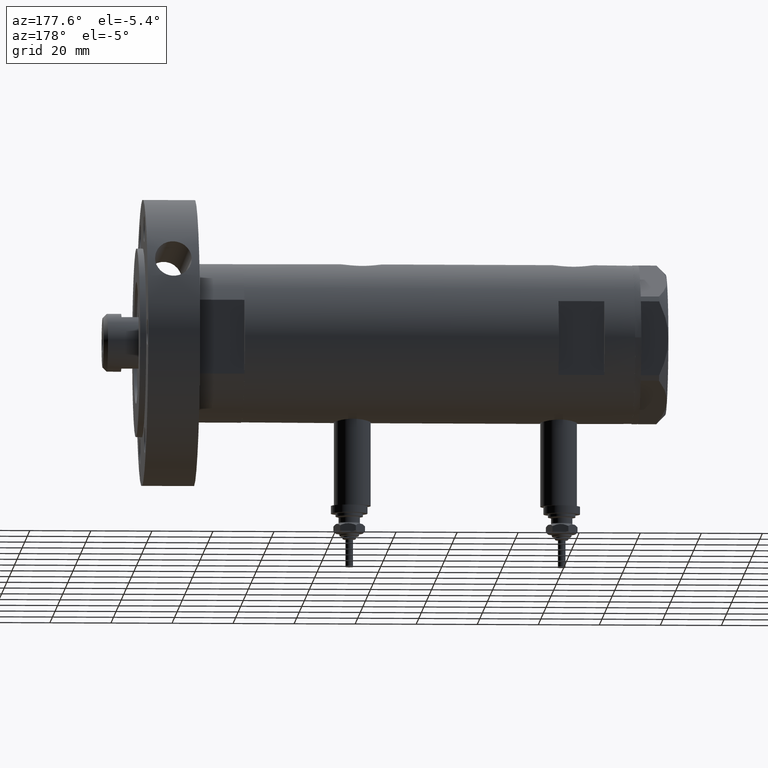
[diagram: clean part render]
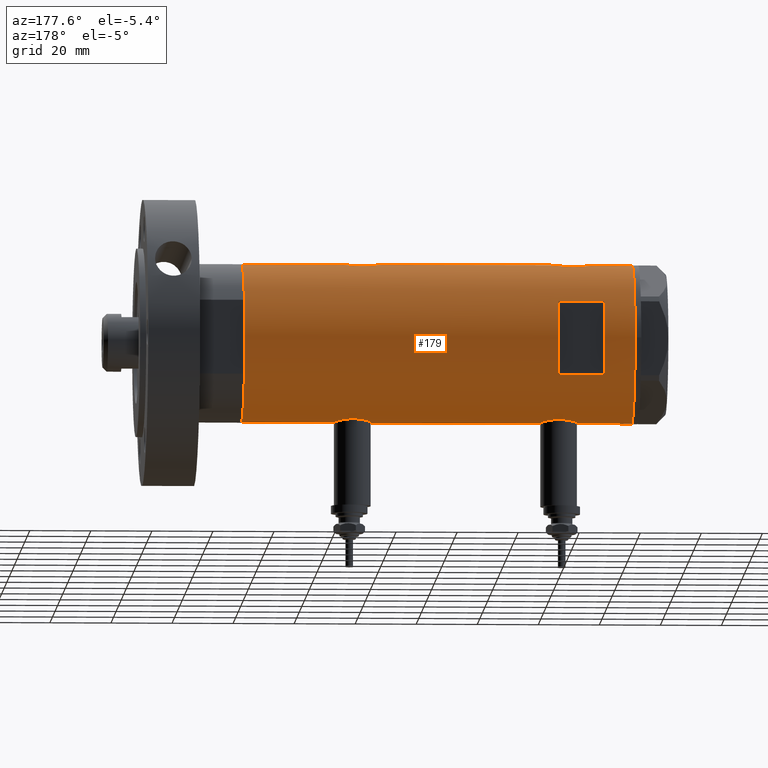
[diagram: same view with one face highlighted and labeled with its STEP entity id]
A machine part, auxiliary view. The second image highlights one B-rep face of the part: STEP entity #179.
In plain terms, the highlighted cylindrical surface (partial cylindrical patch) has radius 26 mm, axis along (-1, -0, 0).
Its self-contained STEP definition (entity closure, byte-faithful):
#2 = CARTESIAN_POINT ( 'NONE',  ( 26.00000000000000355, 2.393127611988522640E-16, 36.95000000000000284 ) ) ;
#28 = CARTESIAN_POINT ( 'NONE',  ( -25.57189498399056049, 4.707763994471527269, -23.51909718944452976 ) ) ;
#50 = EDGE_CURVE ( 'NONE', #2764, #3596, #190, .T. ) ;
#66 = CARTESIAN_POINT ( 'NONE',  ( -25.98789693408478740, 0.8193301824841957570, -33.84948980265347274 ) ) ;
#69 = CARTESIAN_POINT ( 'NONE',  ( 25.08669247833292104, 6.831361936037323446, -21.64462260596211252 ) ) ;
#114 = CARTESIAN_POINT ( 'NONE',  ( 25.30960479024497900, 5.958491152160520166, -29.33139677679963953 ) ) ;
#146 = CARTESIAN_POINT ( 'NONE',  ( -26.00000000000000355, 9.891741702313250758E-16, -21.40000000000000568 ) ) ;
#177 = CARTESIAN_POINT ( 'NONE',  ( -26.00000000000000355, 3.184081677783118585E-15, -63.95000000000000995 ) ) ;
#179 = ADVANCED_FACE ( 'NONE', ( #1463, #7041 ), #6436, .T. ) ;
#189 = CARTESIAN_POINT ( 'NONE',  ( 25.98569222077105323, 0.9879514382926379845, -32.20081846687561722 ) ) ;
#190 = LINE ( 'NONE', #6922, #2503 ) ;
#231 = CARTESIAN_POINT ( 'NONE',  ( 0.000000000000000000, 0.000000000000000000, 63.95000000000000995 ) ) ;
#275 = CARTESIAN_POINT ( 'NONE',  ( -25.27696731428695998, 6.089059008147561514, 41.37416306959482881 ) ) ;
#356 = EDGE_CURVE ( 'NONE', #3596, #1284, #1372, .T. ) ;
#357 = CARTESIAN_POINT ( 'NONE',  ( -25.72087293759780380, 3.814831448865741770, 34.98261705172143365 ) ) ;
#370 = CARTESIAN_POINT ( 'NONE',  ( -25.38675822915648084, 5.615881323213569587, -24.87693218337989975 ) ) ;
#382 = CARTESIAN_POINT ( 'NONE',  ( -12.12435565298214080, 23.00000000000000355, -63.95000000000000995 ) ) ;
#393 = CARTESIAN_POINT ( 'NONE',  ( -25.98057228346870673, 1.024901789261881913, 33.78119414145175625 ) ) ;
#410 = EDGE_CURVE ( 'NONE', #1539, #4079, #4638, .T. ) ;
#413 = CARTESIAN_POINT ( 'NONE',  ( 25.00820649268565887, 7.115348876445586335, 46.87184000475451739 ) ) ;
#439 = DIRECTION ( 'NONE',  ( 1.000000000000000000, 0.000000000000000000, 0.000000000000000000 ) ) ;
#445 = CARTESIAN_POINT ( 'NONE',  ( 24.97016856345953073, 7.245430721349219283, 42.49696959080609560 ) ) ;
#491 = CARTESIAN_POINT ( 'NONE',  ( 25.03487248886524696, 7.018875226450792759, 41.79576782607938412 ) ) ;
#514 = ORIENTED_EDGE ( 'NONE', *, *, #2210, .F. ) ;
#583 = CARTESIAN_POINT ( 'NONE',  ( -25.96182217530153480, 1.422664245316465736, -21.56064726907610307 ) ) ;
#586 = VECTOR ( 'NONE', #4556, 1000.000000000000000 ) ;
#622 = CARTESIAN_POINT ( 'NONE',  ( -25.95015815577422558, 1.621168830448742382, -21.61041429560181371 ) ) ;
#658 = B_SPLINE_CURVE_WITH_KNOTS ( 'NONE', 3,
 ( #4542, #7008, #890, #3348, #5818, #7735, #3470, #6575, #927, #1038, #2204, #4660, #4590, #3502, #4711, #1522, #5970, #491, #2951, #445, #7175, #5244, #2830, #963, #5939, #2906, #413, #4068, #3989, #5367, #6489, #2868, #5406, #7127, #5902, #1069, #6544, #1012, #2121, #7061, #1673, #1595, #5322, #7774, #2239, #1642 ),
 .UNSPECIFIED., .F., .F.,
 ( 4, 2, 2, 2, 2, 2, 2, 2, 2, 2, 2, 2, 2, 2, 2, 2, 2, 2, 2, 2, 2, 2, 4 ),
 ( 2.323866739619147150E-19, 0.001473395154583068958, 0.002210092731874605497, 0.002946790309166141819, 0.004420185463749206657, 0.005156883041040739510, 0.005893580618332274097, 0.007366975772915325057, 0.008840370927498376885, 0.009577068504789901932, 0.01031376608208142698, 0.01178716123666447707, 0.01326055639124752716, 0.01473395154583057726, 0.01547064912312210404, 0.01620734670041363082, 0.01694404427770515587, 0.01768074185499668438, 0.01915413700957973447, 0.02062753216416278457, 0.02210092731874583813, 0.02283762489603735971, 0.02357432247332888128 ),
 .UNSPECIFIED. ) ;
#662 = CARTESIAN_POINT ( 'NONE',  ( -25.23766275406408965, 6.249830297096024445, -27.23808095444882582 ) ) ;
#664 = CARTESIAN_POINT ( 'NONE',  ( 24.89484527721569052, 7.499778575171893280, -25.24550805482937932 ) ) ;
#699 = CARTESIAN_POINT ( 'NONE',  ( -25.99999999999999289, 0.2043916521039002843, -33.90000000000000568 ) ) ;
#701 = CARTESIAN_POINT ( 'NONE',  ( 25.86510134953875450, 2.654921787384012521, -31.76867061694904493 ) ) ;
#730 = VERTEX_POINT ( 'NONE', #6210 ) ;
#747 = CARTESIAN_POINT ( 'NONE',  ( -25.59680708126580129, 4.563450671387943025, -31.92543949979970108 ) ) ;
#750 = CARTESIAN_POINT ( 'NONE',  ( 24.96662810169869218, 7.257932614256870529, -22.79702690473265392 ) ) ;
#784 = CARTESIAN_POINT ( 'NONE',  ( -25.99009688862344092, 0.8219492608955323298, 46.15915939226576370 ) ) ;
#785 = DIRECTION ( 'NONE',  ( 1.000000000000000000, -5.329070518200751394E-15, 0.000000000000000000 ) ) ;
#818 = VECTOR ( 'NONE', #3305, 1000.000000000000000 ) ;
#823 = CARTESIAN_POINT ( 'NONE',  ( 25.92799636947105668, 1.948138538329396319, -31.99677687788214797 ) ) ;
#876 = CARTESIAN_POINT ( 'NONE',  ( 0.000000000000000000, 0.000000000000000000, -63.95000000000000995 ) ) ;
#890 = CARTESIAN_POINT ( 'NONE',  ( 25.98569222077104257, 0.9879514382926377625, 36.99918153312438562 ) ) ;
#907 = CARTESIAN_POINT ( 'NONE',  ( -25.98789693408479451, 0.8193301824841956460, 33.75051019734654290 ) ) ;
#918 = ORIENTED_EDGE ( 'NONE', *, *, #3743, .F. ) ;
#921 = CARTESIAN_POINT ( 'NONE',  ( -26.00000000000000355, 3.184081677783118585E-15, -63.95000000000000995 ) ) ;
#927 = CARTESIAN_POINT ( 'NONE',  ( 25.72923282622329211, 3.765147152416744802, 37.94514424215291371 ) ) ;
#963 = CARTESIAN_POINT ( 'NONE',  ( 24.89471231507667071, 7.500219916954787180, 44.93878226883029470 ) ) ;
#987 = CARTESIAN_POINT ( 'NONE',  ( -25.52275868012767646, 4.960454986366448438, 36.14238370593368188 ) ) ;
#1011 = AXIS2_PLACEMENT_3D ( 'NONE', #1491, #7745, #7667 ) ;
#1012 = CARTESIAN_POINT ( 'NONE',  ( 25.72868876879096689, 3.768709330223694920, 50.95267486870066165 ) ) ;
#1038 = CARTESIAN_POINT ( 'NONE',  ( 25.63006864069250668, 4.375159448492148329, 38.35345588241117554 ) ) ;
#1065 = EDGE_CURVE ( 'NONE', #730, #7364, #3428, .T. ) ;
#1069 = CARTESIAN_POINT ( 'NONE',  ( 25.52590365620542912, 4.955152228772151446, 50.10123727588237585 ) ) ;
#1214 = CARTESIAN_POINT ( 'NONE',  ( -25.57167265924275412, 4.701795585128873967, -31.77276288310035213 ) ) ;
#1284 = VERTEX_POINT ( 'NONE', #7355 ) ;
#1297 = CARTESIAN_POINT ( 'NONE',  ( -25.42927140605240766, 5.422776733968210472, -24.51556003986717513 ) ) ;
#1299 = CARTESIAN_POINT ( 'NONE',  ( 25.89067367629245808, 2.424883365422559223, -17.63594795494831402 ) ) ;
#1333 = ORIENTED_EDGE ( 'NONE', *, *, #1065, .F. ) ;
#1338 = CARTESIAN_POINT ( 'NONE',  ( -25.49884629689154636, 5.081547904122037274, -31.29439805696091526 ) ) ;
#1340 = CARTESIAN_POINT ( 'NONE',  ( 25.01140519645288407, 7.101774040639619479, -27.17392235700823733 ) ) ;
#1341 = AXIS2_PLACEMENT_3D ( 'NONE', #4138, #2859, #439 ) ;
#1372 = B_SPLINE_CURVE_WITH_KNOTS ( 'NONE', 3,
 ( #4931, #6343, #189, #6956, #823, #1860, #701, #5638, #4326, #5675, #5020, #3165, #3722, #1974, #114, #6920, #6270, #6872, #1340, #2557, #1933, #1387, #664, #4401, #3119, #750, #3210, #69, #7438, #2636, #4452, #3842, #6309, #5106, #1419, #4983, #1899, #4367, #6838, #1299, #3756, #6217, #5870, #3327, #5916, #3397 ),
 .UNSPECIFIED., .F., .F.,
 ( 4, 2, 2, 2, 2, 2, 2, 2, 2, 2, 2, 2, 2, 2, 2, 2, 2, 2, 2, 2, 2, 2, 4 ),
 ( 6.413325872240687501E-19, 0.001473395154583055080, 0.002210092731874579910, 0.002946790309166104523, 0.004420185463749155483, 0.005156883041040686601, 0.005893580618332217719, 0.007366975772915269546, 0.008840370927498323109, 0.009577068504789844686, 0.01031376608208136626, 0.01178716123666441982, 0.01326055639124747165, 0.01473395154583052175, 0.01547064912312205720, 0.01620734670041358919, 0.01694404427770512117, 0.01768074185499665316, 0.01915413700957970325, 0.02062753216416275681, 0.02210092731874581037, 0.02283762489603733542, 0.02357432247332886047 ),
 .UNSPECIFIED. ) ;
#1387 = CARTESIAN_POINT ( 'NONE',  ( 24.90951684770588415, 7.451587374037533351, -25.73395604521198621 ) ) ;
#1419 = CARTESIAN_POINT ( 'NONE',  ( 25.41763780493360514, 5.474943943663459933, -19.61823686211066686 ) ) ;
#1463 = FACE_BOUND ( 'NONE', #4507, .T. ) ;
#1491 = CARTESIAN_POINT ( 'NONE',  ( 0.000000000000000000, 0.000000000000000000, 38.94999999999999574 ) ) ;
#1502 = CARTESIAN_POINT ( 'NONE',  ( -25.95015815577423268, 1.621168830448741938, 45.98958570439819482 ) ) ;
#1522 = CARTESIAN_POINT ( 'NONE',  ( 25.17424625143662453, 6.506691718592097828, 40.68758373966274178 ) ) ;
#1536 = CARTESIAN_POINT ( 'NONE',  ( -25.72105193281917224, 3.813738527046911297, 44.91833691099433423 ) ) ;
#1539 = VERTEX_POINT ( 'NONE', #3338 ) ;
#1559 = EDGE_CURVE ( 'NONE', #2764, #5702, #6375, .T. ) ;
#1595 = CARTESIAN_POINT ( 'NONE',  ( 25.97197502027376004, 1.230965554787593952, 51.85240824498373513 ) ) ;
#1642 = CARTESIAN_POINT ( 'NONE',  ( 26.00000000000000355, -3.975025925197986111E-20, 51.95000000000000284 ) ) ;
#1673 = CARTESIAN_POINT ( 'NONE',  ( 25.93077501166306575, 1.957027822413552220, 51.70697858562407845 ) ) ;
#1755 = EDGE_CURVE ( 'NONE', #5943, #7454, #7217, .T. ) ;
#1770 = EDGE_CURVE ( 'NONE', #7364, #3827, #5224, .T. ) ;
#1814 = CARTESIAN_POINT ( 'NONE',  ( -26.00000000000000355, 3.184081677783118585E-15, 63.95000000000000995 ) ) ;
#1856 = AXIS2_PLACEMENT_3D ( 'NONE', #7436, #6307, #785 ) ;
#1860 = CARTESIAN_POINT ( 'NONE',  ( 25.88814720404043968, 2.420758939209242566, -31.85288286828453508 ) ) ;
#1897 = CARTESIAN_POINT ( 'NONE',  ( -25.31518616157687873, 5.930210831981640673, -29.66587117207026836 ) ) ;
#1899 = CARTESIAN_POINT ( 'NONE',  ( 25.59685363299822569, 4.579266302355748053, -18.79027931897347514 ) ) ;
#1930 = CARTESIAN_POINT ( 'NONE',  ( -25.28673619335055633, 6.048783215285168602, -29.27550990348179027 ) ) ;
#1933 = CARTESIAN_POINT ( 'NONE',  ( 24.95233689475078265, 7.306396477445174398, -26.46103813146666184 ) ) ;
#1962 = ORIENTED_EDGE ( 'NONE', *, *, #1770, .F. ) ;
#1974 = CARTESIAN_POINT ( 'NONE',  ( 25.38132706741445332, 5.649034551923782566, -29.70731952814044874 ) ) ;
#1977 = AXIS2_PLACEMENT_3D ( 'NONE', #876, #3250, #3372 ) ;
#2085 = ORIENTED_EDGE ( 'NONE', *, *, #410, .F. ) ;
#2096 = CARTESIAN_POINT ( 'NONE',  ( -25.96182217530152769, 1.422664245316465070, 46.03935273092390190 ) ) ;
#2121 = CARTESIAN_POINT ( 'NONE',  ( 25.78997056644825392, 3.329333406239039839, 51.18834808433847883 ) ) ;
#2141 = CARTESIAN_POINT ( 'NONE',  ( -25.28915991580759837, 6.038390257328908106, 41.57552651146907863 ) ) ;
#2200 = LINE ( 'NONE', #2738, #7527 ) ;
#2204 = CARTESIAN_POINT ( 'NONE',  ( 25.59528664075984850, 4.573671112500303337, 38.50090496483275615 ) ) ;
#2210 = EDGE_CURVE ( 'NONE', #4079, #5073, #3672, .T. ) ;
#2217 = CARTESIAN_POINT ( 'NONE',  ( -25.99999999999999289, 0.2043916521039015888, 33.70000000000000284 ) ) ;
#2239 = CARTESIAN_POINT ( 'NONE',  ( 25.99999999999999645, 0.2455784580650500204, 51.94999999999998863 ) ) ;
#2302 = CARTESIAN_POINT ( 'NONE',  ( 12.12435565298214080, 23.00000000000000355, 53.94999999999999574 ) ) ;
#2428 = CARTESIAN_POINT ( 'NONE',  ( -25.23757896588370642, 6.250168635417626462, -28.05675308410501501 ) ) ;
#2462 = CARTESIAN_POINT ( 'NONE',  ( -25.85406084573622110, 2.777003695811654183, -22.03587158673905222 ) ) ;
#2503 = VECTOR ( 'NONE', #2687, 1000.000000000000000 ) ;
#2508 = CARTESIAN_POINT ( 'NONE',  ( -25.99759026373432391, 0.4091325989570628874, -33.88999890044899388 ) ) ;
#2555 = CARTESIAN_POINT ( 'NONE',  ( -25.67176285215958842, 4.128807479817787396, -32.35991598451124673 ) ) ;
#2557 = CARTESIAN_POINT ( 'NONE',  ( 24.97016856345952007, 7.245430721349214842, -26.70303040919391435 ) ) ;
#2636 = CARTESIAN_POINT ( 'NONE',  ( 25.17636585680006078, 6.493453152855879651, -20.98900750337198318 ) ) ;
#2675 = DIRECTION ( 'NONE',  ( 0.000000000000000000, 0.000000000000000000, 1.000000000000000000 ) ) ;
#2687 = DIRECTION ( 'NONE',  ( 0.000000000000000000, 0.000000000000000000, 1.000000000000000000 ) ) ;
#2723 = CARTESIAN_POINT ( 'NONE',  ( -25.43062364804612230, 5.412314182902753679, 36.81772351419071043 ) ) ;
#2738 = CARTESIAN_POINT ( 'NONE',  ( 26.00000000000000355, 0.000000000000000000, -63.95000000000000995 ) ) ;
#2757 = CARTESIAN_POINT ( 'NONE',  ( -25.67095236150574067, 4.133649689219791590, 44.65535228274259083 ) ) ;
#2764 = VERTEX_POINT ( 'NONE', #6659 ) ;
#2793 = B_SPLINE_CURVE_WITH_KNOTS ( 'NONE', 3,
 ( #5143, #6306, #784, #2096, #1502, #7751, #2808, #3449, #6514, #1536, #2757, #7796, #5260, #5177, #4566, #7675, #5337, #2141, #275, #4090, #3329, #5917, #5221, #5799, #5834, #6430, #7108, #2723, #4678, #2883, #987, #7628, #4608, #3365, #357, #2843, #7713, #6468, #3919, #393, #907, #6557, #2217, #5298 ),
 .UNSPECIFIED., .F., .F.,
 ( 4, 2, 2, 2, 2, 2, 2, 2, 2, 2, 2, 2, 2, 2, 2, 2, 2, 2, 2, 2, 2, 4 ),
 ( 2.732276935479321607E-19, 0.001225774033668403139, 0.001838661050502602649, 0.002451548067336802375, 0.003677322101005202262, 0.004903096134673601281, 0.006128870168342001601, 0.007354644202010401054, 0.007967531218844600346, 0.008580418235678800506, 0.009806192269347199092, 0.01103196630301559768, 0.01225774033668399626, 0.01287062735351819469, 0.01348351437035239485, 0.01409640138718659501, 0.01470928840402079343, 0.01593506243768920069, 0.01716083647135761142, 0.01838661050502602215, 0.01899949752186022578, 0.01961238453869442941 ),
 .UNSPECIFIED. ) ;
#2808 = CARTESIAN_POINT ( 'NONE',  ( -25.90661719257679252, 2.209805098346976138, 45.79988745781523107 ) ) ;
#2830 = CARTESIAN_POINT ( 'NONE',  ( 24.89484527721569762, 7.499778575171895945, 43.95449194517064484 ) ) ;
#2843 = CARTESIAN_POINT ( 'NONE',  ( -25.81206132723605506, 3.139065735901517495, 34.53021230639124894 ) ) ;
#2859 = DIRECTION ( 'NONE',  ( 0.000000000000000000, 0.000000000000000000, 1.000000000000000000 ) ) ;
#2868 = CARTESIAN_POINT ( 'NONE',  ( 25.27545867390325185, 6.096774941222090405, 48.82477406957965371 ) ) ;
#2883 = CARTESIAN_POINT ( 'NONE',  ( -25.49884629689154281, 5.081547904122033721, 36.30560194303910748 ) ) ;
#2906 = CARTESIAN_POINT ( 'NONE',  ( 24.96662810169870284, 7.257932614256869641, 46.40297309526737024 ) ) ;
#2951 = CARTESIAN_POINT ( 'NONE',  ( 25.01140519645289828, 7.101774040639625696, 42.02607764299177973 ) ) ;
#2991 = CARTESIAN_POINT ( 'NONE',  ( -26.00000000000000355, 3.184081677783118585E-15, -63.95000000000000995 ) ) ;
#3000 = EDGE_CURVE ( 'NONE', #6025, #1539, #658, .T. ) ;
#3050 = CARTESIAN_POINT ( 'NONE',  ( 26.00000000000000355, 6.604469597105595072E-16, -32.25000000000000000 ) ) ;
#3086 = CARTESIAN_POINT ( 'NONE',  ( -25.90661719257678541, 2.209805098346974805, -21.80011254218479877 ) ) ;
#3117 = CARTESIAN_POINT ( 'NONE',  ( -25.43062364804612230, 5.412314182902756343, -30.78227648580932652 ) ) ;
#3119 = CARTESIAN_POINT ( 'NONE',  ( 24.90976107960111818, 7.450765568638821890, -23.76117130648535891 ) ) ;
#3160 = CARTESIAN_POINT ( 'NONE',  ( -25.52275868012767646, 4.960454986366448438, -31.45761629406634086 ) ) ;
#3165 = CARTESIAN_POINT ( 'NONE',  ( 25.52465069878074999, 4.952713637311402906, -30.38744860815256388 ) ) ;
#3208 = CARTESIAN_POINT ( 'NONE',  ( -26.00000000000000355, 3.184077527325983904E-15, -33.90000000000001279 ) ) ;
#3210 = CARTESIAN_POINT ( 'NONE',  ( 25.00820649268565532, 7.115348876445588111, -22.32815999524549611 ) ) ;
#3250 = DIRECTION ( 'NONE',  ( 0.000000000000000000, 0.000000000000000000, 1.000000000000000000 ) ) ;
#3277 = LINE ( 'NONE', #177, #7923 ) ;
#3281 = DIRECTION ( 'NONE',  ( 0.000000000000000000, 0.000000000000000000, 1.000000000000000000 ) ) ;
#3304 = AXIS2_PLACEMENT_3D ( 'NONE', #231, #6424, #7622 ) ;
#3305 = DIRECTION ( 'NONE',  ( 0.000000000000000000, 0.000000000000000000, 1.000000000000000000 ) ) ;
#3327 = CARTESIAN_POINT ( 'NONE',  ( 25.99652140603931727, 0.4914164889130551717, -17.26203179519542630 ) ) ;
#3329 = CARTESIAN_POINT ( 'NONE',  ( -25.23766275406409321, 6.249830297096026221, 40.36191904555118271 ) ) ;
#3338 = CARTESIAN_POINT ( 'NONE',  ( 26.00000000000000355, -3.975025925197986111E-20, 51.95000000000000284 ) ) ;
#3348 = CARTESIAN_POINT ( 'NONE',  ( 25.94484652078419273, 1.709678645892021009, 37.14334653240825901 ) ) ;
#3365 = CARTESIAN_POINT ( 'NONE',  ( -25.67176285215957421, 4.128807479817785620, 35.24008401548878311 ) ) ;
#3372 = DIRECTION ( 'NONE',  ( 1.000000000000000000, 0.000000000000000000, 0.000000000000000000 ) ) ;
#3394 = VECTOR ( 'NONE', #7879, 1000.000000000000000 ) ;
#3397 = CARTESIAN_POINT ( 'NONE',  ( 26.00000000000000355, -3.975025925197986111E-20, -17.25000000000000000 ) ) ;
#3406 = VECTOR ( 'NONE', #7653, 1000.000000000000000 ) ;
#3421 = CARTESIAN_POINT ( 'NONE',  ( -26.00000000000000355, 9.891741702313250758E-16, -21.40000000000000568 ) ) ;
#3428 = LINE ( 'NONE', #382, #3406 ) ;
#3449 = CARTESIAN_POINT ( 'NONE',  ( -25.85406084573620689, 2.777003695811653738, 45.56412841326093854 ) ) ;
#3470 = CARTESIAN_POINT ( 'NONE',  ( 25.86510134953875450, 2.654921787384014298, 37.43132938305095792 ) ) ;
#3502 = CARTESIAN_POINT ( 'NONE',  ( 25.38132706741445688, 5.649034551923787895, 39.49268047185955766 ) ) ;
#3574 = LINE ( 'NONE', #4704, #3394 ) ;
#3596 = VERTEX_POINT ( 'NONE', #3050 ) ;
#3598 = CARTESIAN_POINT ( 'NONE',  ( -26.00000000000000355, -2.813058302341337106E-16, 46.20000000000000284 ) ) ;
#3672 = CIRCLE ( 'NONE', #3304, 26.00000000000000355 ) ;
#3706 = ORIENTED_EDGE ( 'NONE', *, *, #4897, .F. ) ;
#3719 = CARTESIAN_POINT ( 'NONE',  ( -25.99009688862344092, 0.8219492608955333290, -21.44084060773424838 ) ) ;
#3722 = CARTESIAN_POINT ( 'NONE',  ( 25.48882460966380492, 5.133289275481214275, -30.22343523597908188 ) ) ;
#3743 = EDGE_CURVE ( 'NONE', #6412, #7869, #2793, .T. ) ;
#3754 = CARTESIAN_POINT ( 'NONE',  ( -25.92432690655986960, 2.018143994254072648, -33.57929422822715537 ) ) ;
#3756 = CARTESIAN_POINT ( 'NONE',  ( 25.93077501166307641, 1.957027822413550888, -17.49302141437590663 ) ) ;
#3796 = CARTESIAN_POINT ( 'NONE',  ( -25.24784248027029676, 6.209126813737964490, -28.47268161688059962 ) ) ;
#3827 = VERTEX_POINT ( 'NONE', #2302 ) ;
#3842 = CARTESIAN_POINT ( 'NONE',  ( 25.27545867390324830, 6.096774941222096622, -20.37522593042036334 ) ) ;
#3919 = CARTESIAN_POINT ( 'NONE',  ( -25.95208098418916620, 1.628413954368980399, 33.90193207829285882 ) ) ;
#3965 = CIRCLE ( 'NONE', #1011, 26.00000000000000355 ) ;
#3989 = CARTESIAN_POINT ( 'NONE',  ( 25.11550258961939974, 6.725017566862028673, 47.77928477806020169 ) ) ;
#4034 = CARTESIAN_POINT ( 'NONE',  ( 26.00000000000000355, 0.000000000000000000, -63.95000000000000995 ) ) ;
#4068 = CARTESIAN_POINT ( 'NONE',  ( 25.08669247833291394, 6.831361936037319893, 47.55537739403791164 ) ) ;
#4079 = VERTEX_POINT ( 'NONE', #5912 ) ;
#4090 = CARTESIAN_POINT ( 'NONE',  ( -25.24766879991037172, 6.209837761082653174, 40.76849569029695886 ) ) ;
#4138 = CARTESIAN_POINT ( 'NONE',  ( 0.000000000000000000, 0.000000000000000000, -63.95000000000000995 ) ) ;
#4143 = EDGE_CURVE ( 'NONE', #6712, #730, #3965, .T. ) ;
#4205 = ORIENTED_EDGE ( 'NONE', *, *, #7908, .T. ) ;
#4244 = CARTESIAN_POINT ( 'NONE',  ( -25.95208098418916975, 1.628413954368980843, -33.69806792170715681 ) ) ;
#4276 = CARTESIAN_POINT ( 'NONE',  ( -25.27696731428695642, 6.089059008147562402, -26.22583693040519037 ) ) ;
#4326 = CARTESIAN_POINT ( 'NONE',  ( 25.72923282622328855, 3.765147152416742138, -31.25485575784708203 ) ) ;
#4365 = CARTESIAN_POINT ( 'NONE',  ( -25.36894112891957676, 5.694149517195238097, -30.23482505198309056 ) ) ;
#4367 = CARTESIAN_POINT ( 'NONE',  ( 25.72868876879096689, 3.768709330223691811, -18.24732513129934830 ) ) ;
#4399 = CARTESIAN_POINT ( 'NONE',  ( -25.33346170681503651, 5.849967696906715808, -25.44052947900492967 ) ) ;
#4401 = CARTESIAN_POINT ( 'NONE',  ( 24.89471231507667426, 7.500219916954788957, -24.26121773116972236 ) ) ;
#4452 = CARTESIAN_POINT ( 'NONE',  ( 25.20855488770173380, 6.367749707222643885, -20.77997776959044174 ) ) ;
#4507 = EDGE_LOOP ( 'NONE', ( #7230, #3706, #1962, #1333 ) ) ;
#4542 = CARTESIAN_POINT ( 'NONE',  ( 26.00000000000000355, 2.393127611988522640E-16, 36.95000000000000284 ) ) ;
#4556 = DIRECTION ( 'NONE',  ( 0.000000000000000000, 0.000000000000000000, 1.000000000000000000 ) ) ;
#4566 = CARTESIAN_POINT ( 'NONE',  ( -25.38675822915648084, 5.615881323213569587, 42.72306781662011588 ) ) ;
#4585 = LINE ( 'NONE', #921, #818 ) ;
#4590 = CARTESIAN_POINT ( 'NONE',  ( 25.48882460966379782, 5.133289275481216940, 38.97656476402091386 ) ) ;
#4608 = CARTESIAN_POINT ( 'NONE',  ( -25.59680708126580129, 4.563450671387941249, 35.67456050020032166 ) ) ;
#4638 = LINE ( 'NONE', #4034, #5358 ) ;
#4639 = ORIENTED_EDGE ( 'NONE', *, *, #3000, .F. ) ;
#4660 = CARTESIAN_POINT ( 'NONE',  ( 25.52465069878074644, 4.952713637311401129, 38.81255139184744962 ) ) ;
#4665 = EDGE_CURVE ( 'NONE', #6412, #5073, #4585, .T. ) ;
#4678 = CARTESIAN_POINT ( 'NONE',  ( -25.45277932469921822, 5.307477387851097461, 36.64327199834690418 ) ) ;
#4704 = CARTESIAN_POINT ( 'NONE',  ( 12.12435565298214080, 23.00000000000000355, -63.95000000000000995 ) ) ;
#4711 = CARTESIAN_POINT ( 'NONE',  ( 25.30960479024496834, 5.958491152160524607, 39.86860322320038819 ) ) ;
#4744 = ORIENTED_EDGE ( 'NONE', *, *, #5873, .F. ) ;
#4891 = CARTESIAN_POINT ( 'NONE',  ( -25.38875076695535782, 5.605452563035137281, -30.42185900824106426 ) ) ;
#4897 = EDGE_CURVE ( 'NONE', #3827, #6712, #3574, .T. ) ;
#4928 = CARTESIAN_POINT ( 'NONE',  ( -25.72105193281916513, 3.813738527046907745, -22.68166308900567785 ) ) ;
#4931 = CARTESIAN_POINT ( 'NONE',  ( 26.00000000000000355, 6.604469597105595072E-16, -32.25000000000000000 ) ) ;
#4983 = CARTESIAN_POINT ( 'NONE',  ( 25.52590365620542556, 4.955152228772148781, -19.09876272411762343 ) ) ;
#5010 = CARTESIAN_POINT ( 'NONE',  ( -26.00000000000000355, 3.184077527313362130E-15, 33.70000000000000995 ) ) ;
#5018 = CARTESIAN_POINT ( 'NONE',  ( -25.81206132723605151, 3.139065735901513943, -33.06978769360876669 ) ) ;
#5020 = CARTESIAN_POINT ( 'NONE',  ( 25.59528664075984139, 4.573671112500301561, -30.69909503516727156 ) ) ;
#5055 = CARTESIAN_POINT ( 'NONE',  ( -25.31738333113901263, 5.918941409682878962, -25.63242077527679186 ) ) ;
#5073 = VERTEX_POINT ( 'NONE', #1814 ) ;
#5106 = CARTESIAN_POINT ( 'NONE',  ( 25.38117076385348270, 5.641057083563593366, -19.80143420258153242 ) ) ;
#5143 = CARTESIAN_POINT ( 'NONE',  ( -26.00000000000000355, -2.813058302341337106E-16, 46.20000000000000284 ) ) ;
#5173 = CARTESIAN_POINT ( 'NONE',  ( -26.00000000000000355, 3.184081677783118585E-15, -63.95000000000000995 ) ) ;
#5177 = CARTESIAN_POINT ( 'NONE',  ( -25.42927140605241121, 5.422776733968213136, 43.08443996013281918 ) ) ;
#5221 = CARTESIAN_POINT ( 'NONE',  ( -25.24784248027030031, 6.209126813737962713, 39.12731838311943022 ) ) ;
#5224 = CIRCLE ( 'NONE', #1856, 26.00000000000000355 ) ;
#5244 = CARTESIAN_POINT ( 'NONE',  ( 24.90951684770588059, 7.451587374037537792, 43.46604395478804861 ) ) ;
#5260 = CARTESIAN_POINT ( 'NONE',  ( -25.52242378584899285, 4.965907353613394193, 43.76719602921738783 ) ) ;
#5298 = CARTESIAN_POINT ( 'NONE',  ( -26.00000000000000355, 3.184077527313362130E-15, 33.70000000000000995 ) ) ;
#5318 = DIRECTION ( 'NONE',  ( 0.000000000000000000, 0.000000000000000000, 1.000000000000000000 ) ) ;
#5322 = CARTESIAN_POINT ( 'NONE',  ( 25.98255381630415428, 0.9836221648041301169, 51.88933098058191007 ) ) ;
#5337 = CARTESIAN_POINT ( 'NONE',  ( -25.31738333113901973, 5.918941409682879851, 41.96757922472325220 ) ) ;
#5358 = VECTOR ( 'NONE', #3281, 1000.000000000000000 ) ;
#5367 = CARTESIAN_POINT ( 'NONE',  ( 25.17636585680005368, 6.493453152855872546, 48.21099249662804453 ) ) ;
#5386 = EDGE_LOOP ( 'NONE', ( #7575, #6327, #6441, #4205, #918, #5783, #514, #2085, #4639, #4744, #5449, #6066 ) ) ;
#5406 = CARTESIAN_POINT ( 'NONE',  ( 25.31017500740586357, 5.951503630041860227, 49.02049592637404629 ) ) ;
#5449 = ORIENTED_EDGE ( 'NONE', *, *, #356, .F. ) ;
#5519 = CARTESIAN_POINT ( 'NONE',  ( -25.67095236150574067, 4.133649689219789813, -22.94464771725742125 ) ) ;
#5589 = CARTESIAN_POINT ( 'NONE',  ( -25.98057228346869252, 1.024901789261879914, -33.81880585854828070 ) ) ;
#5634 = CARTESIAN_POINT ( 'NONE',  ( -25.81251897318926680, 3.135439098787736523, -22.22800821914827907 ) ) ;
#5638 = CARTESIAN_POINT ( 'NONE',  ( 25.78922176490238627, 3.335318700939508663, -31.48550568766476232 ) ) ;
#5675 = CARTESIAN_POINT ( 'NONE',  ( 25.63006864069250668, 4.375159448492144776, -30.84654411758883086 ) ) ;
#5702 = VERTEX_POINT ( 'NONE', #2991 ) ;
#5783 = ORIENTED_EDGE ( 'NONE', *, *, #4665, .T. ) ;
#5799 = CARTESIAN_POINT ( 'NONE',  ( -25.28673619335055278, 6.048783215285168602, 38.32449009651820404 ) ) ;
#5818 = CARTESIAN_POINT ( 'NONE',  ( 25.92799636947105313, 1.948138538329398317, 37.20322312211785487 ) ) ;
#5834 = CARTESIAN_POINT ( 'NONE',  ( -25.31518616157687163, 5.930210831981637121, 37.93412882792974727 ) ) ;
#5870 = CARTESIAN_POINT ( 'NONE',  ( 25.98255381630415783, 0.9836221648041323373, -17.31066901941807501 ) ) ;
#5873 = EDGE_CURVE ( 'NONE', #1284, #6025, #2200, .T. ) ;
#5902 = CARTESIAN_POINT ( 'NONE',  ( 25.41763780493359803, 5.474943943663455492, 49.58176313788934664 ) ) ;
#5912 = CARTESIAN_POINT ( 'NONE',  ( 26.00000000000000355, 0.000000000000000000, 63.95000000000000995 ) ) ;
#5916 = CARTESIAN_POINT ( 'NONE',  ( 26.00000000000001066, 0.2455784580650491045, -17.25000000000000355 ) ) ;
#5917 = CARTESIAN_POINT ( 'NONE',  ( -25.23757896588370286, 6.250168635417627350, 39.54324691589501128 ) ) ;
#5939 = CARTESIAN_POINT ( 'NONE',  ( 24.90976107960111818, 7.450765568638821890, 45.43882869351466525 ) ) ;
#5943 = VERTEX_POINT ( 'NONE', #3421 ) ;
#5970 = CARTESIAN_POINT ( 'NONE',  ( 25.11254978876589661, 6.737777305585160192, 41.11974648253589493 ) ) ;
#6025 = VERTEX_POINT ( 'NONE', #2 ) ;
#6066 = ORIENTED_EDGE ( 'NONE', *, *, #50, .F. ) ;
#6103 = CARTESIAN_POINT ( 'NONE',  ( -25.92257874449350297, 2.014648337067150408, -21.73003581636323389 ) ) ;
#6178 = CARTESIAN_POINT ( 'NONE',  ( -25.24766879991036816, 6.209837761082655838, -26.83150430970304257 ) ) ;
#6210 = CARTESIAN_POINT ( 'NONE',  ( -12.12435565298214080, 23.00000000000000355, 38.94999999999999574 ) ) ;
#6215 = CARTESIAN_POINT ( 'NONE',  ( -25.28915991580759837, 6.038390257328908994, -26.02447348853095122 ) ) ;
#6217 = CARTESIAN_POINT ( 'NONE',  ( 25.97197502027376004, 1.230965554787594396, -17.34759175501625350 ) ) ;
#6267 = CARTESIAN_POINT ( 'NONE',  ( -25.45277932469921467, 5.307477387851098349, -30.95672800165311500 ) ) ;
#6270 = CARTESIAN_POINT ( 'NONE',  ( 25.11254978876590016, 6.737777305585156640, -28.08025351746412213 ) ) ;
#6306 = CARTESIAN_POINT ( 'NONE',  ( -26.00000000000000711, 0.4145874687851189289, 46.20000000000000995 ) ) ;
#6307 = DIRECTION ( 'NONE',  ( -0.000000000000000000, -0.000000000000000000, -1.000000000000000000 ) ) ;
#6308 = CARTESIAN_POINT ( 'NONE',  ( -26.00000000000000355, 3.184077527325983904E-15, -33.90000000000001279 ) ) ;
#6309 = CARTESIAN_POINT ( 'NONE',  ( 25.31017500740586357, 5.951503630041866444, -20.17950407362598853 ) ) ;
#6327 = ORIENTED_EDGE ( 'NONE', *, *, #7924, .T. ) ;
#6343 = CARTESIAN_POINT ( 'NONE',  ( 26.00000000000001776, 0.4983968644076017251, -32.25000000000001421 ) ) ;
#6375 = CIRCLE ( 'NONE', #1341, 26.00000000000000355 ) ;
#6412 = VERTEX_POINT ( 'NONE', #3598 ) ;
#6424 = DIRECTION ( 'NONE',  ( 0.000000000000000000, 0.000000000000000000, 1.000000000000000000 ) ) ;
#6430 = CARTESIAN_POINT ( 'NONE',  ( -25.36894112891956965, 5.694149517195234544, 37.36517494801692862 ) ) ;
#6436 = CYLINDRICAL_SURFACE ( 'NONE', #1977, 26.00000000000000355 ) ;
#6441 = ORIENTED_EDGE ( 'NONE', *, *, #1755, .F. ) ;
#6463 = LINE ( 'NONE', #5173, #586 ) ;
#6468 = CARTESIAN_POINT ( 'NONE',  ( -25.92432690655986960, 2.018143994254070872, 34.02070577177285315 ) ) ;
#6489 = CARTESIAN_POINT ( 'NONE',  ( 25.20855488770172315, 6.367749707222637667, 48.42002223040957887 ) ) ;
#6514 = CARTESIAN_POINT ( 'NONE',  ( -25.81251897318925614, 3.135439098787738743, 45.37199178085171525 ) ) ;
#6544 = CARTESIAN_POINT ( 'NONE',  ( 25.59685363299823280, 4.579266302355747165, 50.40972068102655612 ) ) ;
#6557 = CARTESIAN_POINT ( 'NONE',  ( -25.99759026373432036, 0.4091325989570642196, 33.71000109955100754 ) ) ;
#6575 = CARTESIAN_POINT ( 'NONE',  ( 25.78922176490237561, 3.335318700939509107, 37.71449431233524052 ) ) ;
#6659 = CARTESIAN_POINT ( 'NONE',  ( 26.00000000000000355, 0.000000000000000000, -63.95000000000000995 ) ) ;
#6712 = VERTEX_POINT ( 'NONE', #7492 ) ;
#6714 = CARTESIAN_POINT ( 'NONE',  ( -25.85449082491264861, 2.772892880050691122, -33.26609297485325101 ) ) ;
#6751 = CARTESIAN_POINT ( 'NONE',  ( -25.72087293759780735, 3.814831448865741326, -32.61738294827859619 ) ) ;
#6838 = CARTESIAN_POINT ( 'NONE',  ( 25.78997056644824681, 3.329333406239041615, -18.01165191566153823 ) ) ;
#6870 = CARTESIAN_POINT ( 'NONE',  ( -26.00000000000000711, 0.4145874687851189844, -21.40000000000000924 ) ) ;
#6872 = CARTESIAN_POINT ( 'NONE',  ( 25.03487248886524341, 7.018875226450789206, -27.40423217392064359 ) ) ;
#6920 = CARTESIAN_POINT ( 'NONE',  ( 25.17424625143662809, 6.506691718592095164, -28.51241626033727528 ) ) ;
#6922 = CARTESIAN_POINT ( 'NONE',  ( 26.00000000000000355, 0.000000000000000000, -63.95000000000000995 ) ) ;
#6956 = CARTESIAN_POINT ( 'NONE',  ( 25.94484652078418208, 1.709678645892019899, -32.05665346759175804 ) ) ;
#7008 = CARTESIAN_POINT ( 'NONE',  ( 26.00000000000000355, 0.4983968644076020582, 36.95000000000000284 ) ) ;
#7041 = FACE_OUTER_BOUND ( 'NONE', #5386, .T. ) ;
#7061 = CARTESIAN_POINT ( 'NONE',  ( 25.89067367629246164, 2.424883365422555670, 51.56405204505168172 ) ) ;
#7108 = CARTESIAN_POINT ( 'NONE',  ( -25.38875076695534716, 5.605452563035134617, 37.17814099175895848 ) ) ;
#7127 = CARTESIAN_POINT ( 'NONE',  ( 25.38117076385347914, 5.641057083563588925, 49.39856579741849174 ) ) ;
#7175 = CARTESIAN_POINT ( 'NONE',  ( 24.95233689475078975, 7.306396477445178839, 42.73896186853335877 ) ) ;
#7217 = B_SPLINE_CURVE_WITH_KNOTS ( 'NONE', 3,
 ( #146, #6870, #3719, #583, #622, #6103, #3086, #2462, #5634, #4928, #5519, #28, #7387, #1297, #370, #4399, #5055, #6215, #4276, #6178, #662, #2428, #3796, #1930, #1897, #4365, #4891, #3117, #6267, #1338, #3160, #1214, #747, #2555, #6751, #5018, #6714, #3754, #4244, #5589, #66, #2508, #699, #3208 ),
 .UNSPECIFIED., .F., .F.,
 ( 4, 2, 2, 2, 2, 2, 2, 2, 2, 2, 2, 2, 2, 2, 2, 2, 2, 2, 2, 2, 2, 4 ),
 ( 9.607684875373755967E-19, 0.001225774033668407042, 0.001838661050502609588, 0.002451548067336812350, 0.003677322101005213971, 0.004903096134673616026, 0.006128870168342016346, 0.007354644202010416666, 0.007967531218844617694, 0.008580418235678816119, 0.009806192269347225113, 0.01103196630301563584, 0.01225774033668404484, 0.01287062735351825020, 0.01348351437035245383, 0.01409640138718665919, 0.01470928840402086456, 0.01593506243768925273, 0.01716083647135764612, 0.01838661050502603603, 0.01899949752186023272, 0.01961238453869442941 ),
 .UNSPECIFIED. ) ;
#7230 = ORIENTED_EDGE ( 'NONE', *, *, #4143, .F. ) ;
#7355 = CARTESIAN_POINT ( 'NONE',  ( 26.00000000000000355, -3.975025925197986111E-20, -17.25000000000000000 ) ) ;
#7364 = VERTEX_POINT ( 'NONE', #7507 ) ;
#7387 = CARTESIAN_POINT ( 'NONE',  ( -25.52242378584899640, 4.965907353613392416, -23.83280397078263491 ) ) ;
#7436 = CARTESIAN_POINT ( 'NONE',  ( 0.000000000000000000, 0.000000000000000000, 53.94999999999999574 ) ) ;
#7438 = CARTESIAN_POINT ( 'NONE',  ( 25.11550258961939619, 6.725017566862034002, -21.42071522193981181 ) ) ;
#7454 = VERTEX_POINT ( 'NONE', #6308 ) ;
#7492 = CARTESIAN_POINT ( 'NONE',  ( 12.12435565298213724, 23.00000000000000355, 38.94999999999999574 ) ) ;
#7507 = CARTESIAN_POINT ( 'NONE',  ( -12.12435565298214080, 23.00000000000000355, 53.94999999999999574 ) ) ;
#7527 = VECTOR ( 'NONE', #5318, 1000.000000000000000 ) ;
#7575 = ORIENTED_EDGE ( 'NONE', *, *, #1559, .T. ) ;
#7622 = DIRECTION ( 'NONE',  ( 1.000000000000000000, 0.000000000000000000, 0.000000000000000000 ) ) ;
#7628 = CARTESIAN_POINT ( 'NONE',  ( -25.57167265924276123, 4.701795585128874855, 35.82723711689968837 ) ) ;
#7653 = DIRECTION ( 'NONE',  ( 0.000000000000000000, 0.000000000000000000, 1.000000000000000000 ) ) ;
#7667 = DIRECTION ( 'NONE',  ( -1.000000000000000000, -5.329070518200751394E-15, 0.000000000000000000 ) ) ;
#7675 = CARTESIAN_POINT ( 'NONE',  ( -25.33346170681504717, 5.849967696906719361, 42.15947052099510017 ) ) ;
#7713 = CARTESIAN_POINT ( 'NONE',  ( -25.85449082491264861, 2.772892880050687126, 34.33390702514679305 ) ) ;
#7735 = CARTESIAN_POINT ( 'NONE',  ( 25.88814720404043257, 2.420758939209243898, 37.34711713171546421 ) ) ;
#7745 = DIRECTION ( 'NONE',  ( -0.000000000000000000, -0.000000000000000000, 1.000000000000000000 ) ) ;
#7751 = CARTESIAN_POINT ( 'NONE',  ( -25.92257874449351007, 2.014648337067150408, 45.86996418363678174 ) ) ;
#7774 = CARTESIAN_POINT ( 'NONE',  ( 25.99652140603931016, 0.4914164889130518965, 51.93796820480458365 ) ) ;
#7796 = CARTESIAN_POINT ( 'NONE',  ( -25.57189498399055338, 4.707763994471528157, 44.08090281055548587 ) ) ;
#7869 = VERTEX_POINT ( 'NONE', #5010 ) ;
#7879 = DIRECTION ( 'NONE',  ( -0.000000000000000000, -0.000000000000000000, -1.000000000000000000 ) ) ;
#7908 = EDGE_CURVE ( 'NONE', #5943, #7869, #6463, .T. ) ;
#7923 = VECTOR ( 'NONE', #2675, 1000.000000000000000 ) ;
#7924 = EDGE_CURVE ( 'NONE', #5702, #7454, #3277, .T. ) ;